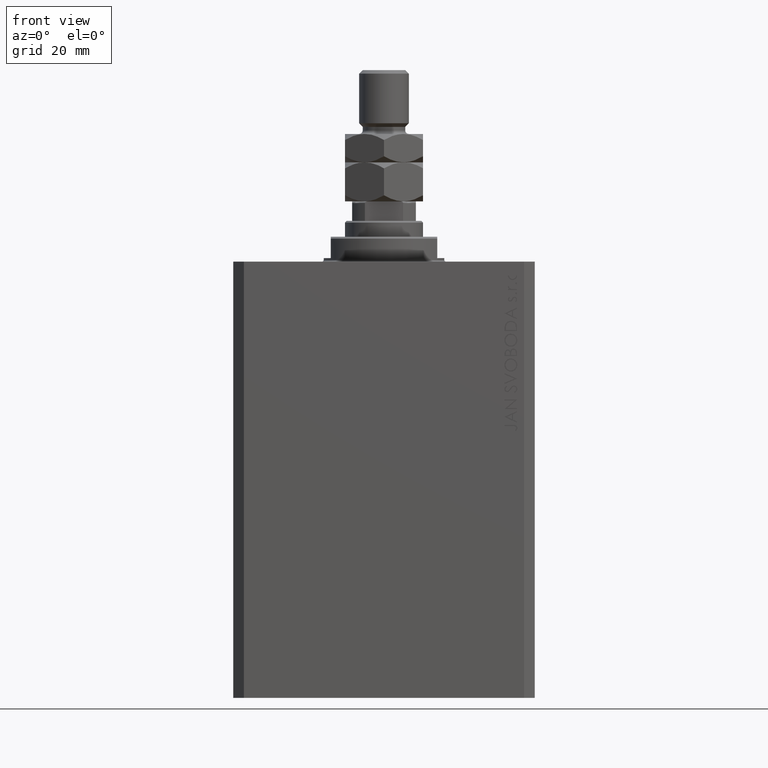
[diagram: clean part render]
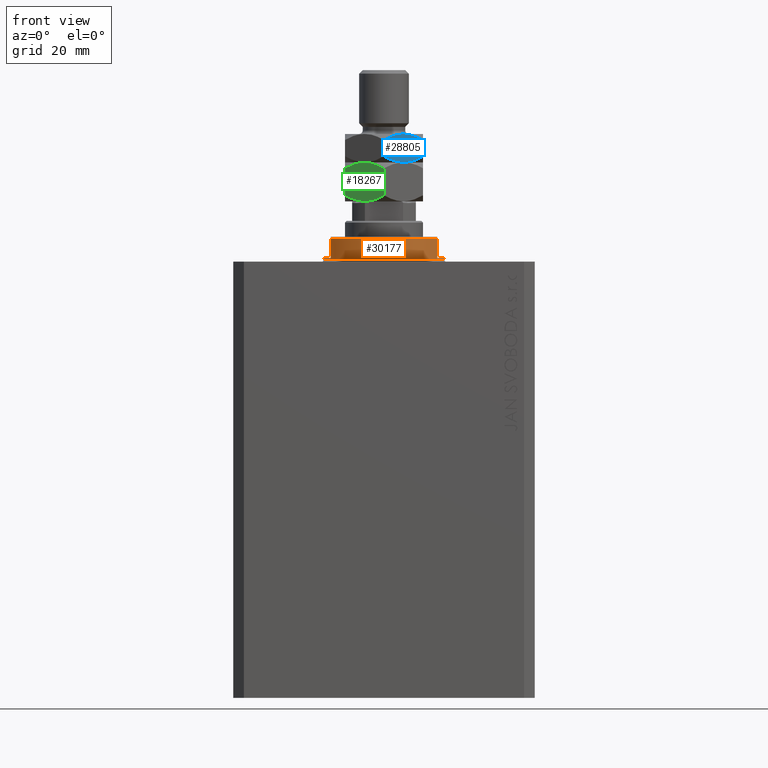
[diagram: same view with three faces highlighted in distinct colors, each labeled with its STEP entity id]
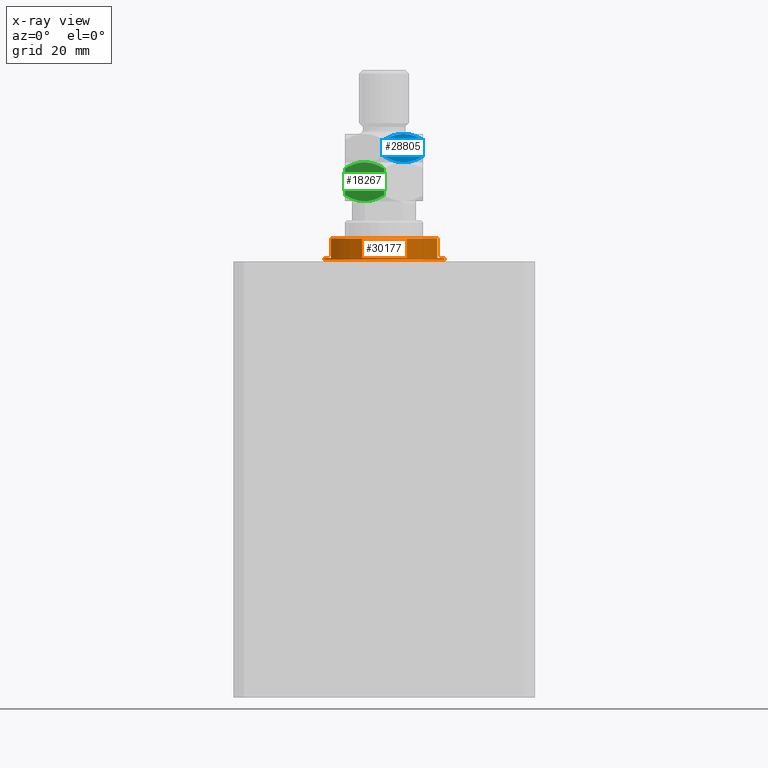
[diagram: x-ray of the same camera — body ghosted, the three highlighted faces saturated]
A machine part, front view with three faces highlighted in distinct colors.
The next image is the same camera in x-ray (body ghosted, the three faces saturated) — at least one of them is partly hidden behind the body in this view.
Their STEP definitions:

[orange] entity #30177 — the highlighted cylindrical surface (partial cylindrical patch) has radius 17 mm, axis along (0, 0, -1).
#322 = VERTEX_POINT ( 'NONE', #24568 ) ;
#1882 = CARTESIAN_POINT ( 'NONE',  ( 17.00000000000000000, 0.000000000000000000, -0.4999999999999995559 ) ) ;
#2035 = EDGE_LOOP ( 'NONE', ( #9325, #38620, #45062, #2095, #14344, #42967, #44550, #21958 ) ) ;
#2095 = ORIENTED_EDGE ( 'NONE', *, *, #38286, .T. ) ;
#2125 = DIRECTION ( 'NONE',  ( -0.000000000000000000, -0.000000000000000000, 1.000000000000000000 ) ) ;
#2211 = FACE_OUTER_BOUND ( 'NONE', #2035, .T. ) ;
#3428 = AXIS2_PLACEMENT_3D ( 'NONE', #25786, #14791, #15020 ) ;
#3511 = DIRECTION ( 'NONE',  ( 0.000000000000000000, 0.000000000000000000, -1.000000000000000000 ) ) ;
#3859 = CARTESIAN_POINT ( 'NONE',  ( -15.00000000000000000, -8.000000000000001776, -6.500000000000014211 ) ) ;
#4365 = DIRECTION ( 'NONE',  ( -0.000000000000000000, -0.000000000000000000, -1.000000000000000000 ) ) ;
#5862 = LINE ( 'NONE', #23847, #31632 ) ;
#7646 = CIRCLE ( 'NONE', #38996, 17.00000000000000000 ) ;
#8525 = CIRCLE ( 'NONE', #31716, 17.00000000000000000 ) ;
#9325 = ORIENTED_EDGE ( 'NONE', *, *, #13982, .F. ) ;
#9929 = VERTEX_POINT ( 'NONE', #1882 ) ;
#10243 = EDGE_CURVE ( 'NONE', #9929, #31868, #26310, .T. ) ;
#11085 = VECTOR ( 'NONE', #38356, 1000.000000000000000 ) ;
#12488 = DIRECTION ( 'NONE',  ( -0.000000000000000000, -0.000000000000000000, 1.000000000000000000 ) ) ;
#12719 = DIRECTION ( 'NONE',  ( -0.000000000000000000, -0.000000000000000000, 1.000000000000000000 ) ) ;
#13982 = EDGE_CURVE ( 'NONE', #19081, #31868, #5862, .T. ) ;
#14111 = CARTESIAN_POINT ( 'NONE',  ( -17.00000000000000000, 2.081899558550500280E-15, -1.000000000000000000 ) ) ;
#14177 = CARTESIAN_POINT ( 'NONE',  ( 0.000000000000000000, 0.000000000000000000, -0.4999999999999995559 ) ) ;
#14344 = ORIENTED_EDGE ( 'NONE', *, *, #27737, .F. ) ;
#14791 = DIRECTION ( 'NONE',  ( 0.000000000000000000, 0.000000000000000000, 1.000000000000000000 ) ) ;
#14986 = DIRECTION ( 'NONE',  ( 0.000000000000000000, 0.000000000000000000, -1.000000000000000000 ) ) ;
#15020 = DIRECTION ( 'NONE',  ( -1.000000000000000000, 0.000000000000000000, 0.000000000000000000 ) ) ;
#15125 = VECTOR ( 'NONE', #12719, 1000.000000000000000 ) ;
#15988 = AXIS2_PLACEMENT_3D ( 'NONE', #23002, #12488, #26743 ) ;
#16226 = LINE ( 'NONE', #30476, #15125 ) ;
#16416 = CARTESIAN_POINT ( 'NONE',  ( 0.000000000000000000, 0.000000000000000000, -1.000000000000000000 ) ) ;
#19001 = EDGE_CURVE ( 'NONE', #322, #9929, #16226, .T. ) ;
#19081 = VERTEX_POINT ( 'NONE', #14111 ) ;
#20108 = EDGE_CURVE ( 'NONE', #21638, #43528, #45577, .T. ) ;
#20594 = CIRCLE ( 'NONE', #3428, 17.00000000000000000 ) ;
#21118 = CARTESIAN_POINT ( 'NONE',  ( 15.00000000000000000, -8.000000000000001776, -6.500000000000013323 ) ) ;
#21303 = VERTEX_POINT ( 'NONE', #24384 ) ;
#21428 = DIRECTION ( 'NONE',  ( 1.000000000000000000, 0.000000000000000000, 0.000000000000000000 ) ) ;
#21638 = VERTEX_POINT ( 'NONE', #21965 ) ;
#21958 = ORIENTED_EDGE ( 'NONE', *, *, #10243, .T. ) ;
#21965 = CARTESIAN_POINT ( 'NONE',  ( -14.99999999999999645, -8.000000000000003553, -1.000000000000000000 ) ) ;
#22736 = DIRECTION ( 'NONE',  ( 0.000000000000000000, 0.000000000000000000, -1.000000000000000000 ) ) ;
#23002 = CARTESIAN_POINT ( 'NONE',  ( 0.000000000000000000, 0.000000000000000000, -7.000000000000000000 ) ) ;
#23220 = VERTEX_POINT ( 'NONE', #21118 ) ;
#23847 = CARTESIAN_POINT ( 'NONE',  ( -17.00000000000000000, 2.081899558550500280E-15, -7.000000000000000000 ) ) ;
#24143 = VECTOR ( 'NONE', #3511, 1000.000000000000000 ) ;
#24384 = CARTESIAN_POINT ( 'NONE',  ( 14.99999999999999645, -8.000000000000003553, -1.000000000000000000 ) ) ;
#24568 = CARTESIAN_POINT ( 'NONE',  ( 17.00000000000000000, 0.000000000000000000, -1.000000000000000000 ) ) ;
#25054 = DIRECTION ( 'NONE',  ( -1.000000000000000000, 0.000000000000000000, 0.000000000000000000 ) ) ;
#25279 = CARTESIAN_POINT ( 'NONE',  ( 0.000000000000000000, 0.000000000000000000, -1.000000000000000000 ) ) ;
#25786 = CARTESIAN_POINT ( 'NONE',  ( 0.000000000000000000, 0.000000000000000000, -6.500000000000013323 ) ) ;
#26310 = CIRCLE ( 'NONE', #32261, 17.00000000000000000 ) ;
#26431 = EDGE_CURVE ( 'NONE', #21638, #19081, #7646, .T. ) ;
#26743 = DIRECTION ( 'NONE',  ( 1.000000000000000000, 0.000000000000000000, 0.000000000000000000 ) ) ;
#27737 = EDGE_CURVE ( 'NONE', #21303, #23220, #38304, .T. ) ;
#30177 = ADVANCED_FACE ( 'NONE', ( #2211 ), #37467, .T. ) ;
#30476 = CARTESIAN_POINT ( 'NONE',  ( 17.00000000000000000, 0.000000000000000000, -7.000000000000000000 ) ) ;
#31632 = VECTOR ( 'NONE', #2125, 1000.000000000000000 ) ;
#31716 = AXIS2_PLACEMENT_3D ( 'NONE', #25279, #14986, #25054 ) ;
#31868 = VERTEX_POINT ( 'NONE', #45076 ) ;
#32261 = AXIS2_PLACEMENT_3D ( 'NONE', #14177, #4365, #21428 ) ;
#33364 = EDGE_CURVE ( 'NONE', #322, #21303, #8525, .T. ) ;
#34156 = DIRECTION ( 'NONE',  ( -1.000000000000000000, 0.000000000000000000, 0.000000000000000000 ) ) ;
#35498 = CARTESIAN_POINT ( 'NONE',  ( 15.00000000000000000, -8.000000000000001776, -7.000000000000000000 ) ) ;
#37467 = CYLINDRICAL_SURFACE ( 'NONE', #15988, 17.00000000000000000 ) ;
#38286 = EDGE_CURVE ( 'NONE', #43528, #23220, #20594, .T. ) ;
#38304 = LINE ( 'NONE', #35498, #24143 ) ;
#38356 = DIRECTION ( 'NONE',  ( 0.000000000000000000, 0.000000000000000000, -1.000000000000000000 ) ) ;
#38620 = ORIENTED_EDGE ( 'NONE', *, *, #26431, .F. ) ;
#38996 = AXIS2_PLACEMENT_3D ( 'NONE', #16416, #22736, #34156 ) ;
#42547 = CARTESIAN_POINT ( 'NONE',  ( -15.00000000000000000, -8.000000000000001776, -7.000000000000000000 ) ) ;
#42967 = ORIENTED_EDGE ( 'NONE', *, *, #33364, .F. ) ;
#43528 = VERTEX_POINT ( 'NONE', #3859 ) ;
#44550 = ORIENTED_EDGE ( 'NONE', *, *, #19001, .T. ) ;
#45062 = ORIENTED_EDGE ( 'NONE', *, *, #20108, .T. ) ;
#45076 = CARTESIAN_POINT ( 'NONE',  ( -17.00000000000000000, 2.081899558550500280E-15, -0.4999999999999995559 ) ) ;
#45577 = LINE ( 'NONE', #42547, #11085 ) ;

[blue] entity #28805 — the highlighted planar face has unit normal (-0.5, 0.866, 0).
#1469 = CARTESIAN_POINT ( 'NONE',  ( 10.99999999999999645, -6.350852961085881709, 19.00000000000000000 ) ) ;
#1599 = DIRECTION ( 'NONE',  ( -0.5000000000000003331, 0.8660254037844385966, 0.000000000000000000 ) ) ;
#1691 = LINE ( 'NONE', #1469, #26429 ) ;
#3030 = EDGE_CURVE ( 'NONE', #9369, #34032, #35034, .T. ) ;
#3161 = CARTESIAN_POINT ( 'NONE',  ( 7.397073880711843685, -8.431003325927234116, 18.83109139163523693 ) ) ;
#3305 = ORIENTED_EDGE ( 'NONE', *, *, #3030, .F. ) ;
#3535 = CARTESIAN_POINT ( 'NONE',  ( 1.748214531935804894, -11.69237379155740975, 11.77768480452202837 ) ) ;
#3841 = CARTESIAN_POINT ( 'NONE',  ( 6.456670474420574735, -8.973945485696335211, 18.99999999999999289 ) ) ;
#6570 = VERTEX_POINT ( 'NONE', #34262 ) ;
#6772 = CARTESIAN_POINT ( 'NONE',  ( 0.8624791307172129384, -12.20375336388175036, 17.79624663611825142 ) ) ;
#7335 = CARTESIAN_POINT ( 'NONE',  ( 5.499999999999994671, -9.526279441628823008, 11.00000000000000000 ) ) ;
#7341 = CARTESIAN_POINT ( 'NONE',  ( 9.251785468064186446, -7.360185091700238935, 18.22231519547796097 ) ) ;
#7389 = ORIENTED_EDGE ( 'NONE', *, *, #13496, .F. ) ;
#7661 = CARTESIAN_POINT ( 'NONE',  ( 5.499999999999994671, -9.526279441628823008, 11.00000000000000000 ) ) ;
#8132 = CARTESIAN_POINT ( 'NONE',  ( 6.470625887979892354, -8.965888323921216596, 11.04365929743512531 ) ) ;
#8799 = ORIENTED_EDGE ( 'NONE', *, *, #45867, .F. ) ;
#8859 = EDGE_CURVE ( 'NONE', #12801, #34032, #41849, .T. ) ;
#9369 = VERTEX_POINT ( 'NONE', #7335 ) ;
#9841 = CARTESIAN_POINT ( 'NONE',  ( 3.602926119288149653, -10.62155555733041901, 11.16890860836476307 ) ) ;
#10528 = CARTESIAN_POINT ( 'NONE',  ( 4.543329525579420824, -10.07861339756131080, 11.00000000000000888 ) ) ;
#12573 = DIRECTION ( 'NONE',  ( -0.8660254037844384856, -0.5000000000000002220, 0.000000000000000000 ) ) ;
#12801 = VERTEX_POINT ( 'NONE', #38102 ) ;
#13496 = EDGE_CURVE ( 'NONE', #6570, #36395, #33801, .T. ) ;
#15367 = CARTESIAN_POINT ( 'NONE',  ( 10.13752086928278295, -6.848805519375900985, 12.20375336388174681 ) ) ;
#17781 = CARTESIAN_POINT ( 'NONE',  ( 0.8614806024966414899, -12.20432986441868906, 12.20432986441860912 ) ) ;
#17802 = CARTESIAN_POINT ( 'NONE',  ( -1.239917741184855327E-15, -12.70170592217176697, 19.00000000000000000 ) ) ;
#17975 = CARTESIAN_POINT ( 'NONE',  ( 1.744478007639206574, -11.69453107486588728, 18.21937661245321749 ) ) ;
#19323 = CARTESIAN_POINT ( 'NONE',  ( 7.884967580346608607, -8.149317767107175925, 11.32821921209040283 ) ) ;
#20418 = VECTOR ( 'NONE', #46042, 1000.000000000000000 ) ;
#20906 = B_SPLINE_CURVE_WITH_KNOTS ( 'NONE', 3,
 ( #31519, #6772, #17975, #45767, #28474, #42727, #28028, #24993 ),
 .UNSPECIFIED., .F., .F.,
 ( 4, 2, 2, 4 ),
 ( 2.544311317622334175E-07, 0.003291871675740033840, 0.004937680298044169920, 0.006583488920348303831 ),
 .UNSPECIFIED. ) ;
#21150 = B_SPLINE_CURVE_WITH_KNOTS ( 'NONE', 3,
 ( #39889, #15367, #43168, #19323, #37065, #8132, #40123, #7661 ),
 .UNSPECIFIED., .F., .F.,
 ( 4, 2, 2, 4 ),
 ( 2.544311317614349830E-07, 0.003291871675740029504, 0.004937680298044164716, 0.006583488920348300362 ),
 .UNSPECIFIED. ) ;
#21598 = CARTESIAN_POINT ( 'NONE',  ( 10.13851939750335163, -6.848229018838960513, 17.79567013558139621 ) ) ;
#21901 = ORIENTED_EDGE ( 'NONE', *, *, #41565, .F. ) ;
#24563 = ORIENTED_EDGE ( 'NONE', *, *, #30446, .F. ) ;
#24993 = CARTESIAN_POINT ( 'NONE',  ( 5.499999999999998224, -9.526279441628817679, 19.00000000000000000 ) ) ;
#26429 = VECTOR ( 'NONE', #41150, 1000.000000000000000 ) ;
#28028 = CARTESIAN_POINT ( 'NONE',  ( 5.018290712253357988, -9.804394428580488707, 18.99999999999999645 ) ) ;
#28474 = CARTESIAN_POINT ( 'NONE',  ( 3.579894028994818900, -10.63485314086127076, 18.79187792513291910 ) ) ;
#28805 = ADVANCED_FACE ( 'NONE', ( #37556 ), #37095, .F. ) ;
#30446 = EDGE_CURVE ( 'NONE', #36395, #44111, #1691, .T. ) ;
#31519 = CARTESIAN_POINT ( 'NONE',  ( -1.114322647986502597E-15, -12.70170592217176697, 17.29829407782823125 ) ) ;
#32325 = CARTESIAN_POINT ( 'NONE',  ( 10.99999999999999645, -6.350852961085881709, 17.29829407782823480 ) ) ;
#33801 = B_SPLINE_CURVE_WITH_KNOTS ( 'NONE', 3,
 ( #39337, #3841, #3161, #7341, #21598, #32325 ),
 .UNSPECIFIED., .F., .F.,
 ( 4, 2, 4 ),
 ( 0.006583488920348303831, 0.009852050593448713131, 0.01312061226654912330 ),
 .UNSPECIFIED. ) ;
#34032 = VERTEX_POINT ( 'NONE', #38718 ) ;
#34129 = EDGE_LOOP ( 'NONE', ( #21901, #24563, #7389, #8799, #35850, #3305 ) ) ;
#34262 = CARTESIAN_POINT ( 'NONE',  ( 5.499999999999998224, -9.526279441628817679, 19.00000000000000000 ) ) ;
#34829 = CARTESIAN_POINT ( 'NONE',  ( 10.99999999999999645, -6.350852961085881709, 12.70170592217176164 ) ) ;
#35034 = B_SPLINE_CURVE_WITH_KNOTS ( 'NONE', 3,
 ( #38328, #10528, #9841, #3535, #17781, #38559 ),
 .UNSPECIFIED., .F., .F.,
 ( 4, 2, 4 ),
 ( 0.006583488920348300362, 0.009852050593448711396, 0.01312061226654912330 ),
 .UNSPECIFIED. ) ;
#35850 = ORIENTED_EDGE ( 'NONE', *, *, #8859, .T. ) ;
#36395 = VERTEX_POINT ( 'NONE', #39690 ) ;
#37065 = CARTESIAN_POINT ( 'NONE',  ( 7.420105971005177103, -8.417705742396377033, 11.20812207486707557 ) ) ;
#37095 = PLANE ( 'NONE',  #39795 ) ;
#37556 = FACE_OUTER_BOUND ( 'NONE', #34129, .T. ) ;
#37790 = CARTESIAN_POINT ( 'NONE',  ( -1.239917741184855327E-15, -12.70170592217176697, 19.00000000000000000 ) ) ;
#38102 = CARTESIAN_POINT ( 'NONE',  ( -1.114322647986502597E-15, -12.70170592217176697, 17.29829407782823125 ) ) ;
#38328 = CARTESIAN_POINT ( 'NONE',  ( 5.499999999999994671, -9.526279441628823008, 11.00000000000000000 ) ) ;
#38559 = CARTESIAN_POINT ( 'NONE',  ( -6.797443497229144639E-16, -12.70170592217176697, 12.70170592217176697 ) ) ;
#38718 = CARTESIAN_POINT ( 'NONE',  ( -6.797443497229144639E-16, -12.70170592217176697, 12.70170592217176697 ) ) ;
#39337 = CARTESIAN_POINT ( 'NONE',  ( 5.499999999999998224, -9.526279441628817679, 19.00000000000000000 ) ) ;
#39690 = CARTESIAN_POINT ( 'NONE',  ( 10.99999999999999645, -6.350852961085881709, 17.29829407782823480 ) ) ;
#39795 = AXIS2_PLACEMENT_3D ( 'NONE', #37790, #1599, #12573 ) ;
#39889 = CARTESIAN_POINT ( 'NONE',  ( 10.99999999999999645, -6.350852961085881709, 12.70170592217176164 ) ) ;
#40123 = CARTESIAN_POINT ( 'NONE',  ( 5.981709287746636683, -9.248164454677160862, 11.00000000000000355 ) ) ;
#41150 = DIRECTION ( 'NONE',  ( -0.000000000000000000, -0.000000000000000000, -1.000000000000000000 ) ) ;
#41565 = EDGE_CURVE ( 'NONE', #44111, #9369, #21150, .T. ) ;
#41849 = LINE ( 'NONE', #17802, #20418 ) ;
#42727 = CARTESIAN_POINT ( 'NONE',  ( 4.529374112020106757, -10.08667055933643830, 18.95634070256486936 ) ) ;
#43168 = CARTESIAN_POINT ( 'NONE',  ( 9.255521992360788985, -7.358027808391761404, 11.78062338754677718 ) ) ;
#44111 = VERTEX_POINT ( 'NONE', #34829 ) ;
#45767 = CARTESIAN_POINT ( 'NONE',  ( 3.115032419653386064, -10.90324111615047187, 18.67178078790958295 ) ) ;
#45867 = EDGE_CURVE ( 'NONE', #12801, #6570, #20906, .T. ) ;
#46042 = DIRECTION ( 'NONE',  ( -0.000000000000000000, -0.000000000000000000, -1.000000000000000000 ) ) ;

[green] entity #18267 — the highlighted planar face has unit normal (0.5, 0.866, 0).
#208 = VERTEX_POINT ( 'NONE', #13122 ) ;
#518 = CARTESIAN_POINT ( 'NONE',  ( -11.00000000000000000, -6.350852961085885262, 1.701705922171762309 ) ) ;
#1120 = DIRECTION ( 'NONE',  ( -0.000000000000000000, -0.000000000000000000, -1.000000000000000000 ) ) ;
#3128 = VERTEX_POINT ( 'NONE', #42750 ) ;
#4027 = CARTESIAN_POINT ( 'NONE',  ( -10.13851939750335696, -6.848229018838964954, 1.204329864418606011 ) ) ;
#4262 = CARTESIAN_POINT ( 'NONE',  ( -5.499999999999999112, -9.526279441628828337, 11.00000000000000000 ) ) ;
#4704 = VECTOR ( 'NONE', #19444, 1000.000000000000000 ) ;
#6572 = PLANE ( 'NONE',  #32287 ) ;
#6925 = CARTESIAN_POINT ( 'NONE',  ( -1.735608132212364507E-15, -12.70170592217176342, 9.298294077828241910 ) ) ;
#7790 = B_SPLINE_CURVE_WITH_KNOTS ( 'NONE', 3,
 ( #25544, #29963, #39788, #18542, #15713, #7797 ),
 .UNSPECIFIED., .F., .F.,
 ( 4, 2, 4 ),
 ( 0.006583488920348300362, 0.009852050593448711396, 0.01312061226654912330 ),
 .UNSPECIFIED. ) ;
#7797 = CARTESIAN_POINT ( 'NONE',  ( -1.735608132212364507E-15, -12.70170592217176342, 9.298294077828241910 ) ) ;
#8155 = EDGE_LOOP ( 'NONE', ( #36080, #33664, #21608, #17495, #17749, #10757 ) ) ;
#9259 = CARTESIAN_POINT ( 'NONE',  ( -3.579894028994819788, -10.63485314086127254, 0.2081220748670717380 ) ) ;
#10757 = ORIENTED_EDGE ( 'NONE', *, *, #33365, .F. ) ;
#11026 = CARTESIAN_POINT ( 'NONE',  ( -7.397073880711848126, -8.431003325927232339, 0.1689086083647580172 ) ) ;
#12161 = VECTOR ( 'NONE', #1120, 1000.000000000000000 ) ;
#13122 = CARTESIAN_POINT ( 'NONE',  ( -11.00000000000000000, -6.350852961085885262, 9.298294077828238358 ) ) ;
#14099 = CARTESIAN_POINT ( 'NONE',  ( -5.499999999999999112, -9.526279441628828337, 11.00000000000000000 ) ) ;
#15713 = CARTESIAN_POINT ( 'NONE',  ( -0.8614806024966442655, -12.20432986441868728, 9.795670135581394433 ) ) ;
#16030 = CARTESIAN_POINT ( 'NONE',  ( -3.115032419653387397, -10.90324111615046832, 0.3282192120904052768 ) ) ;
#16265 = CARTESIAN_POINT ( 'NONE',  ( -5.018290712253360653, -9.804394428580497589, 4.082698805765729113E-16 ) ) ;
#16489 = CARTESIAN_POINT ( 'NONE',  ( -4.529374112020106757, -10.08667055933643653, 0.04365929743512406147 ) ) ;
#16729 = CARTESIAN_POINT ( 'NONE',  ( -5.499999999999998224, -9.526279441628826561, 0.000000000000000000 ) ) ;
#17486 = B_SPLINE_CURVE_WITH_KNOTS ( 'NONE', 3,
 ( #27198, #39083, #31836, #17837, #39533, #17611, #39768, #14099 ),
 .UNSPECIFIED., .F., .F.,
 ( 4, 2, 2, 4 ),
 ( 2.544311317614349830E-07, 0.003291871675740028636, 0.004937680298044163849, 0.006583488920348300362 ),
 .UNSPECIFIED. ) ;
#17495 = ORIENTED_EDGE ( 'NONE', *, *, #17848, .F. ) ;
#17611 = CARTESIAN_POINT ( 'NONE',  ( -6.470625887979892354, -8.965888323921213043, 10.95634070256487647 ) ) ;
#17749 = ORIENTED_EDGE ( 'NONE', *, *, #18626, .T. ) ;
#17837 = CARTESIAN_POINT ( 'NONE',  ( -7.884967580346610383, -8.149317767107177701, 10.67178078790959184 ) ) ;
#17848 = EDGE_CURVE ( 'NONE', #208, #36219, #17486, .T. ) ;
#18267 = ADVANCED_FACE ( 'NONE', ( #42751 ), #6572, .F. ) ;
#18542 = CARTESIAN_POINT ( 'NONE',  ( -1.748214531935809335, -11.69237379155741330, 10.22231519547797518 ) ) ;
#18626 = EDGE_CURVE ( 'NONE', #208, #25428, #37285, .T. ) ;
#19116 = EDGE_CURVE ( 'NONE', #41807, #3128, #40928, .T. ) ;
#19444 = DIRECTION ( 'NONE',  ( -0.000000000000000000, -0.000000000000000000, -1.000000000000000000 ) ) ;
#19546 = CARTESIAN_POINT ( 'NONE',  ( -11.00000000000000000, -6.350852961085885262, 11.00000000000000000 ) ) ;
#19910 = EDGE_CURVE ( 'NONE', #36219, #41807, #7790, .T. ) ;
#20329 = CARTESIAN_POINT ( 'NONE',  ( -5.499999999999998224, -9.526279441628826561, 0.000000000000000000 ) ) ;
#20820 = DIRECTION ( 'NONE',  ( -0.8660254037844387076, 0.4999999999999998335, 0.000000000000000000 ) ) ;
#21608 = ORIENTED_EDGE ( 'NONE', *, *, #19910, .F. ) ;
#21771 = CARTESIAN_POINT ( 'NONE',  ( -6.456670474420573846, -8.973945485696338764, 4.698209414103847288E-16 ) ) ;
#22827 = B_SPLINE_CURVE_WITH_KNOTS ( 'NONE', 3,
 ( #29227, #21771, #11026, #36007, #4027, #518 ),
 .UNSPECIFIED., .F., .F.,
 ( 4, 2, 4 ),
 ( 0.006583488920348294290, 0.009852050593448706192, 0.01312061226654912156 ),
 .UNSPECIFIED. ) ;
#23322 = B_SPLINE_CURVE_WITH_KNOTS ( 'NONE', 3,
 ( #38434, #34002, #41245, #16030, #9259, #16489, #16265, #16729 ),
 .UNSPECIFIED., .F., .F.,
 ( 4, 2, 2, 4 ),
 ( 2.544311317621743898E-07, 0.003291871675740028202, 0.004937680298044160379, 0.006583488920348294290 ),
 .UNSPECIFIED. ) ;
#25428 = VERTEX_POINT ( 'NONE', #45384 ) ;
#25464 = CARTESIAN_POINT ( 'NONE',  ( -11.00000000000000000, -6.350852961085885262, 11.00000000000000000 ) ) ;
#25544 = CARTESIAN_POINT ( 'NONE',  ( -5.499999999999999112, -9.526279441628828337, 11.00000000000000000 ) ) ;
#27198 = CARTESIAN_POINT ( 'NONE',  ( -11.00000000000000000, -6.350852961085885262, 9.298294077828238358 ) ) ;
#27697 = VERTEX_POINT ( 'NONE', #20329 ) ;
#29227 = CARTESIAN_POINT ( 'NONE',  ( -5.499999999999998224, -9.526279441628826561, 0.000000000000000000 ) ) ;
#29963 = CARTESIAN_POINT ( 'NONE',  ( -4.543329525579421713, -10.07861339756131080, 11.00000000000000355 ) ) ;
#31836 = CARTESIAN_POINT ( 'NONE',  ( -9.255521992360788985, -7.358027808391763180, 10.21937661245322282 ) ) ;
#32287 = AXIS2_PLACEMENT_3D ( 'NONE', #25464, #39023, #20820 ) ;
#33365 = EDGE_CURVE ( 'NONE', #27697, #25428, #22827, .T. ) ;
#33664 = ORIENTED_EDGE ( 'NONE', *, *, #19116, .F. ) ;
#34002 = CARTESIAN_POINT ( 'NONE',  ( -0.8624791307172157140, -12.20375336388174503, 1.203753363881743033 ) ) ;
#34225 = EDGE_CURVE ( 'NONE', #3128, #27697, #23322, .T. ) ;
#36007 = CARTESIAN_POINT ( 'NONE',  ( -9.251785468064189999, -7.360185091700237159, 0.7776848045220270400 ) ) ;
#36080 = ORIENTED_EDGE ( 'NONE', *, *, #34225, .F. ) ;
#36219 = VERTEX_POINT ( 'NONE', #4262 ) ;
#37285 = LINE ( 'NONE', #19546, #12161 ) ;
#38434 = CARTESIAN_POINT ( 'NONE',  ( -2.056508384864602535E-15, -12.70170592217176342, 1.701705922171757868 ) ) ;
#39023 = DIRECTION ( 'NONE',  ( 0.4999999999999998335, 0.8660254037844387076, -0.000000000000000000 ) ) ;
#39083 = CARTESIAN_POINT ( 'NONE',  ( -10.13752086928278295, -6.848805519375901874, 9.796246636118254969 ) ) ;
#39533 = CARTESIAN_POINT ( 'NONE',  ( -7.420105971005178880, -8.417705742396378810, 10.79187792513292798 ) ) ;
#39768 = CARTESIAN_POINT ( 'NONE',  ( -5.981709287746638459, -9.248164454677157309, 11.00000000000000000 ) ) ;
#39788 = CARTESIAN_POINT ( 'NONE',  ( -3.602926119288152318, -10.62155555733041901, 10.83109139163524581 ) ) ;
#40928 = LINE ( 'NONE', #44199, #4704 ) ;
#41245 = CARTESIAN_POINT ( 'NONE',  ( -1.744478007639210349, -11.69453107486588550, 0.7806233875467739614 ) ) ;
#41807 = VERTEX_POINT ( 'NONE', #6925 ) ;
#42750 = CARTESIAN_POINT ( 'NONE',  ( -2.056508384864602535E-15, -12.70170592217176342, 1.701705922171757868 ) ) ;
#42751 = FACE_OUTER_BOUND ( 'NONE', #8155, .T. ) ;
#44199 = CARTESIAN_POINT ( 'NONE',  ( -2.168404344971008868E-15, -12.70170592217176342, 11.00000000000000000 ) ) ;
#45384 = CARTESIAN_POINT ( 'NONE',  ( -11.00000000000000000, -6.350852961085885262, 1.701705922171762309 ) ) ;